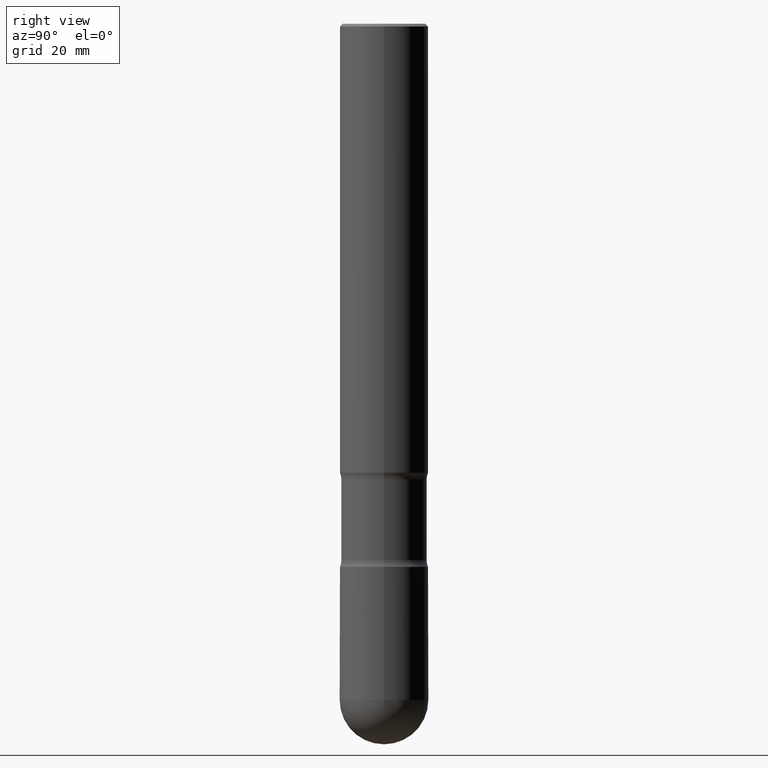
[diagram: clean part render]
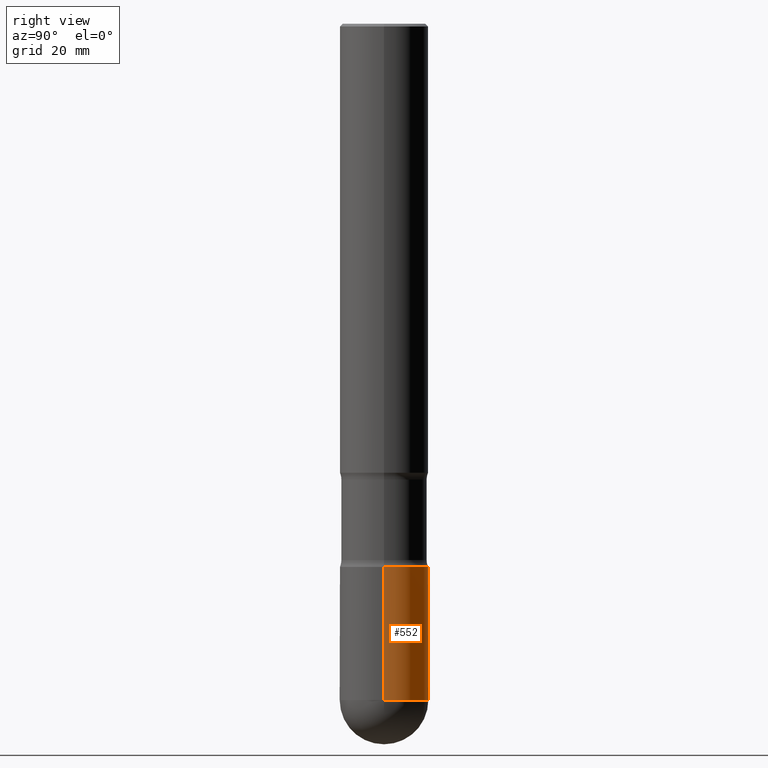
[diagram: same view with one face highlighted and labeled with its STEP entity id]
A machine part, right view. The second image highlights one B-rep face of the part: STEP entity #552.
In plain terms, the highlighted cylindrical surface (partial cylindrical patch) has radius 7.9997 mm, axis along (-0, 0, 1).
Its self-contained STEP definition (entity closure, byte-faithful):
#23 = CARTESIAN_POINT ( 'NONE',  ( 0.3149499999999992861, -2.199284095337284349E-15, 1.535751875536926486E-29 ) ) ;
#30 = CARTESIAN_POINT ( 'NONE',  ( -0.3149499999999992861, 2.237854346276430463E-15, -1.549218606675779033E-29 ) ) ;
#50 = CARTESIAN_POINT ( 'NONE',  ( 1.174595349642814099E-28, -1.677010859266445514E-14, -4.803150000000000475 ) ) ;
#51 = CYLINDRICAL_SURFACE ( 'NONE', #85, 0.3149499999999992861 ) ;
#52 = DIRECTION ( 'NONE',  ( -2.445468806185136597E-29, 3.491481338843145583E-15, 1.000000000000000000 ) ) ;
#63 = DIRECTION ( 'NONE',  ( -2.445468806185136877E-29, 3.491481338843145188E-15, 1.000000000000000000 ) ) ;
#70 = EDGE_CURVE ( 'NONE', #202, #442, #208, .T. ) ;
#72 = VERTEX_POINT ( 'NONE', #328 ) ;
#76 = CARTESIAN_POINT ( 'NONE',  ( 2.199284095337402284E-15, 0.3149499999999825772, -4.803150000000001363 ) ) ;
#85 = AXIS2_PLACEMENT_3D ( 'NONE', #236, #233, #536 ) ;
#106 = LINE ( 'NONE', #30, #177 ) ;
#128 = VECTOR ( 'NONE', #421, 39.37007874015748143 ) ;
#142 = EDGE_LOOP ( 'NONE', ( #362, #530, #398, #527, #522 ) ) ;
#151 = AXIS2_PLACEMENT_3D ( 'NONE', #257, #153, #425 ) ;
#153 = DIRECTION ( 'NONE',  ( -2.445468806185136597E-29, 3.491481338843145583E-15, 1.000000000000000000 ) ) ;
#166 = DIRECTION ( 'NONE',  ( 1.000000000000000000, -6.982962677686264344E-15, 0.000000000000000000 ) ) ;
#177 = VECTOR ( 'NONE', #63, 39.37007874015748143 ) ;
#201 = EDGE_CURVE ( 'NONE', #202, #72, #539, .T. ) ;
#202 = VERTEX_POINT ( 'NONE', #420 ) ;
#205 = EDGE_CURVE ( 'NONE', #259, #524, #106, .T. ) ;
#208 = CIRCLE ( 'NONE', #393, 0.3149499999999991751 ) ;
#233 = DIRECTION ( 'NONE',  ( -2.445468806185136597E-29, 3.491481338843145583E-15, 1.000000000000000000 ) ) ;
#236 = CARTESIAN_POINT ( 'NONE',  ( 0.000000000000000000, 0.000000000000000000, 0.000000000000000000 ) ) ;
#237 = DIRECTION ( 'NONE',  ( 1.000000000000000000, -6.982962677686264344E-15, 0.000000000000000000 ) ) ;
#257 = CARTESIAN_POINT ( 'NONE',  ( 9.435352294904112142E-29, -1.347118244965850850E-14, -3.858300000000000285 ) ) ;
#259 = VERTEX_POINT ( 'NONE', #511 ) ;
#260 = CARTESIAN_POINT ( 'NONE',  ( 1.174595349642814099E-28, -1.677010859266445514E-14, -4.803150000000000475 ) ) ;
#280 = FACE_OUTER_BOUND ( 'NONE', #142, .T. ) ;
#295 = CIRCLE ( 'NONE', #151, 0.3149499999999993416 ) ;
#313 = DIRECTION ( 'NONE',  ( -2.445468806185136597E-29, 3.491481338843145583E-15, 1.000000000000000000 ) ) ;
#328 = CARTESIAN_POINT ( 'NONE',  ( 0.3149499999999993416, -1.567046654499579206E-14, -3.858300000000000285 ) ) ;
#336 = EDGE_CURVE ( 'NONE', #72, #524, #295, .T. ) ;
#342 = AXIS2_PLACEMENT_3D ( 'NONE', #260, #313, #166 ) ;
#362 = ORIENTED_EDGE ( 'NONE', *, *, #516, .T. ) ;
#393 = AXIS2_PLACEMENT_3D ( 'NONE', #50, #52, #237 ) ;
#398 = ORIENTED_EDGE ( 'NONE', *, *, #336, .F. ) ;
#420 = CARTESIAN_POINT ( 'NONE',  ( 0.3149499999999991751, -1.731992961649876932E-14, -4.803150000000000475 ) ) ;
#421 = DIRECTION ( 'NONE',  ( -2.445468806185136877E-29, 3.491481338843145188E-15, 1.000000000000000000 ) ) ;
#425 = DIRECTION ( 'NONE',  ( 1.000000000000000000, -6.982962677686266711E-15, 0.000000000000000000 ) ) ;
#442 = VERTEX_POINT ( 'NONE', #76 ) ;
#486 = CIRCLE ( 'NONE', #342, 0.3149499999999991751 ) ;
#489 = CARTESIAN_POINT ( 'NONE',  ( -0.3149499999999993416, -1.288279117488505135E-14, -3.858300000000000285 ) ) ;
#511 = CARTESIAN_POINT ( 'NONE',  ( -0.3149499999999991751, -1.288279117488505451E-14, -4.803150000000000475 ) ) ;
#516 = EDGE_CURVE ( 'NONE', #442, #259, #486, .T. ) ;
#522 = ORIENTED_EDGE ( 'NONE', *, *, #70, .T. ) ;
#524 = VERTEX_POINT ( 'NONE', #489 ) ;
#527 = ORIENTED_EDGE ( 'NONE', *, *, #201, .F. ) ;
#530 = ORIENTED_EDGE ( 'NONE', *, *, #205, .T. ) ;
#536 = DIRECTION ( 'NONE',  ( 1.000000000000000000, -6.982962677686265922E-15, 4.876176775795935793E-29 ) ) ;
#539 = LINE ( 'NONE', #23, #128 ) ;
#552 = ADVANCED_FACE ( 'NONE', ( #280 ), #51, .T. ) ;